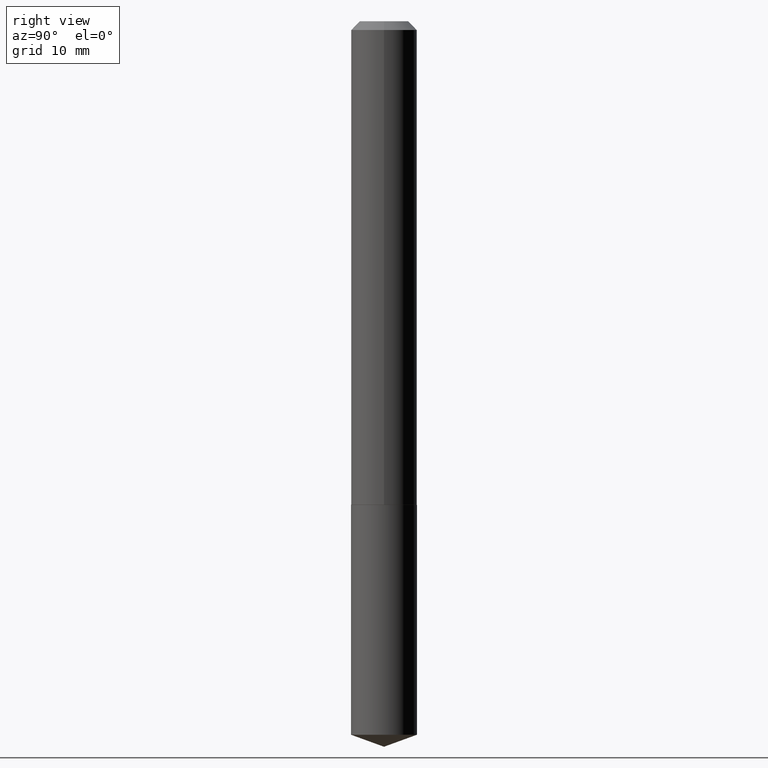
[diagram: clean part render]
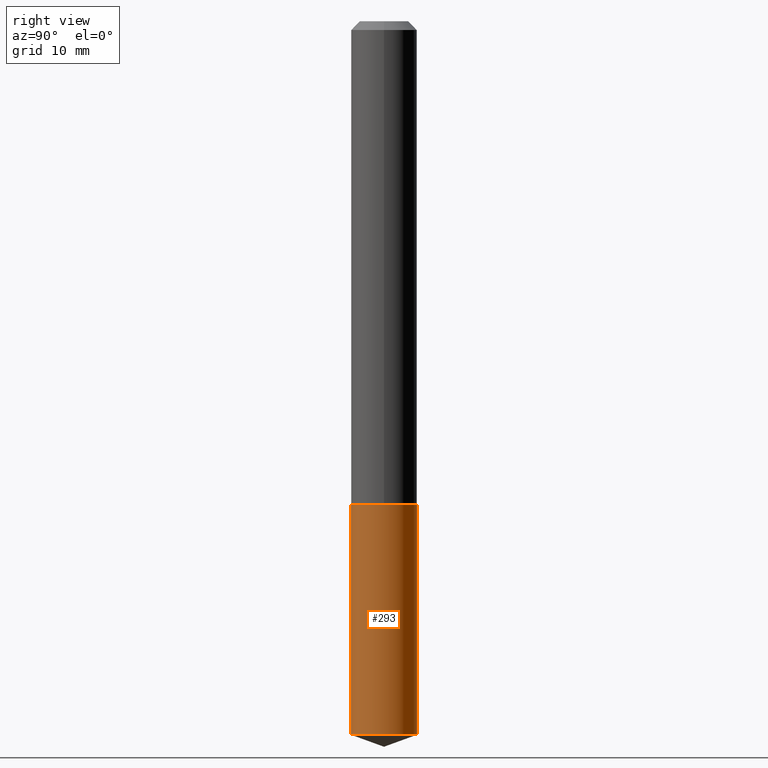
[diagram: same view with one face highlighted and labeled with its STEP entity id]
A machine part, right view. The second image highlights one B-rep face of the part: STEP entity #293.
In plain terms, the highlighted cylindrical surface (edge-blend (fillet) strip) has radius 2.9997 mm, axis along (-0, 0, 1).
Its self-contained STEP definition (entity closure, byte-faithful):
#1 = LINE ( 'NONE', #140, #255 ) ;
#3 = CYLINDRICAL_SURFACE ( 'NONE', #214, 0.1180999999999999966 ) ;
#19 = CARTESIAN_POINT ( 'NONE',  ( -8.246878922347056641E-16, -0.1181000000000060474, -1.732199999999999074 ) ) ;
#21 = VERTEX_POINT ( 'NONE', #213 ) ;
#35 = DIRECTION ( 'NONE',  ( -2.446119298233268617E-29, 3.490549797206512511E-15, 1.000000000000000000 ) ) ;
#53 = CIRCLE ( 'NONE', #227, 0.1180999999999999966 ) ;
#58 = EDGE_CURVE ( 'NONE', #62, #21, #386, .T. ) ;
#62 = VERTEX_POINT ( 'NONE', #160 ) ;
#70 = FACE_OUTER_BOUND ( 'NONE', #364, .T. ) ;
#71 = DIRECTION ( 'NONE',  ( -6.982962677686265922E-15, -1.000000000000000000, 4.626330217890369336E-15 ) ) ;
#85 = DIRECTION ( 'NONE',  ( -2.446119298233268617E-29, 3.490549797206512117E-15, 1.000000000000000000 ) ) ;
#113 = VERTEX_POINT ( 'NONE', #19 ) ;
#119 = VECTOR ( 'NONE', #247, 39.37007874015748143 ) ;
#128 = CARTESIAN_POINT ( 'NONE',  ( 8.391509709327204997E-16, 0.1180999999999939598, -1.732200000000000184 ) ) ;
#138 = DIRECTION ( 'NONE',  ( -2.446119298233268617E-29, 3.490549797206512117E-15, 1.000000000000000000 ) ) ;
#140 = CARTESIAN_POINT ( 'NONE',  ( -8.246878922347056641E-16, -0.1181000000000060474, -1.732199999999999074 ) ) ;
#160 = CARTESIAN_POINT ( 'NONE',  ( 8.391509709327407143E-16, 0.1180999999999910732, -2.555415115333162568 ) ) ;
#166 = EDGE_CURVE ( 'NONE', #113, #21, #53, .T. ) ;
#167 = DIRECTION ( 'NONE',  ( -2.446119298233268617E-29, 3.490549797206512117E-15, 1.000000000000000000 ) ) ;
#184 = ORIENTED_EDGE ( 'NONE', *, *, #166, .F. ) ;
#185 = ORIENTED_EDGE ( 'NONE', *, *, #339, .T. ) ;
#187 = ORIENTED_EDGE ( 'NONE', *, *, #58, .T. ) ;
#211 = ORIENTED_EDGE ( 'NONE', *, *, #352, .F. ) ;
#213 = CARTESIAN_POINT ( 'NONE',  ( 8.391509709327408129E-16, 0.1180999999999939598, -1.732200000000000184 ) ) ;
#214 = AXIS2_PLACEMENT_3D ( 'NONE', #331, #138, #71 ) ;
#223 = DIRECTION ( 'NONE',  ( -6.982962677686265922E-15, -1.000000000000000000, 4.626330217890369336E-15 ) ) ;
#225 = CARTESIAN_POINT ( 'NONE',  ( -8.246878922346856468E-16, -0.1181000000000089339, -2.555415115333161236 ) ) ;
#226 = VERTEX_POINT ( 'NONE', #225 ) ;
#227 = AXIS2_PLACEMENT_3D ( 'NONE', #236, #85, #304 ) ;
#236 = CARTESIAN_POINT ( 'NONE',  ( 4.236041066073892487E-29, -6.047943975144095988E-15, -1.732199999999999518 ) ) ;
#247 = DIRECTION ( 'NONE',  ( -2.446119298233268617E-29, 3.490549797206512511E-15, 1.000000000000000000 ) ) ;
#249 = AXIS2_PLACEMENT_3D ( 'NONE', #328, #167, #223 ) ;
#255 = VECTOR ( 'NONE', #35, 39.37007874015748143 ) ;
#293 = ADVANCED_FACE ( 'NONE', ( #70 ), #3, .T. ) ;
#304 = DIRECTION ( 'NONE',  ( -6.982962677686265922E-15, -1.000000000000000000, 4.626330217890369336E-15 ) ) ;
#328 = CARTESIAN_POINT ( 'NONE',  ( 6.249723446287668181E-29, -8.921417329027599768E-15, -2.555415115333162124 ) ) ;
#331 = CARTESIAN_POINT ( 'NONE',  ( 4.236041066073892487E-29, -6.047943975144095988E-15, -1.732199999999999518 ) ) ;
#339 = EDGE_CURVE ( 'NONE', #226, #62, #390, .T. ) ;
#352 = EDGE_CURVE ( 'NONE', #226, #113, #1, .T. ) ;
#364 = EDGE_LOOP ( 'NONE', ( #185, #187, #184, #211 ) ) ;
#386 = LINE ( 'NONE', #128, #119 ) ;
#390 = CIRCLE ( 'NONE', #249, 0.1180999999999999966 ) ;